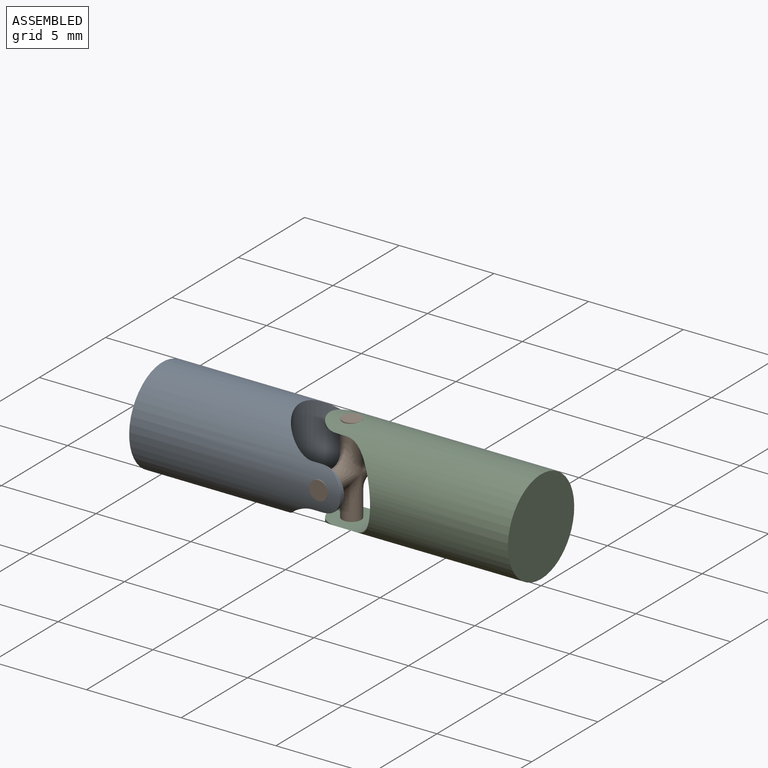
[diagram: assembled view]
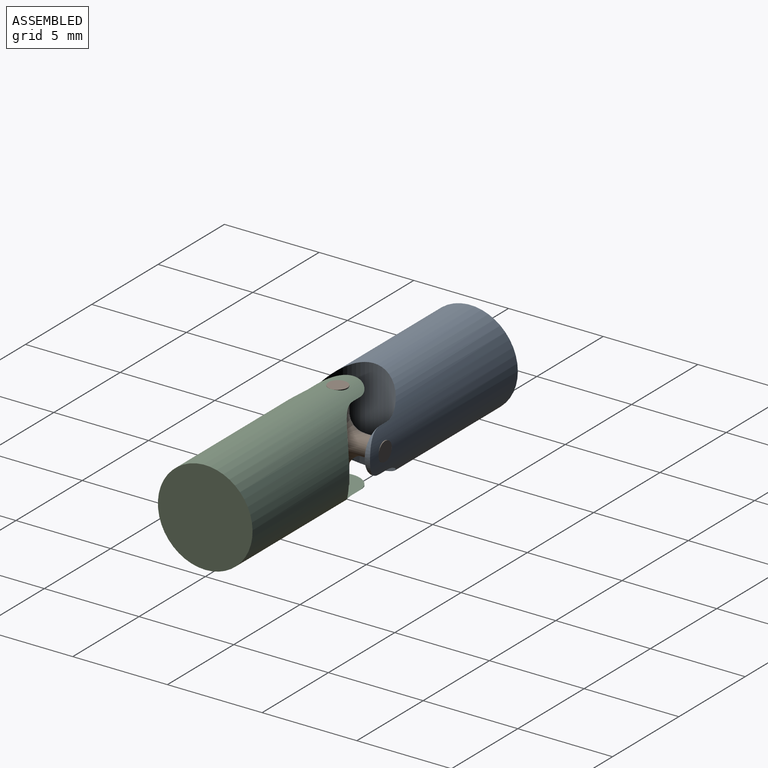
[diagram: assembled view, second angle]
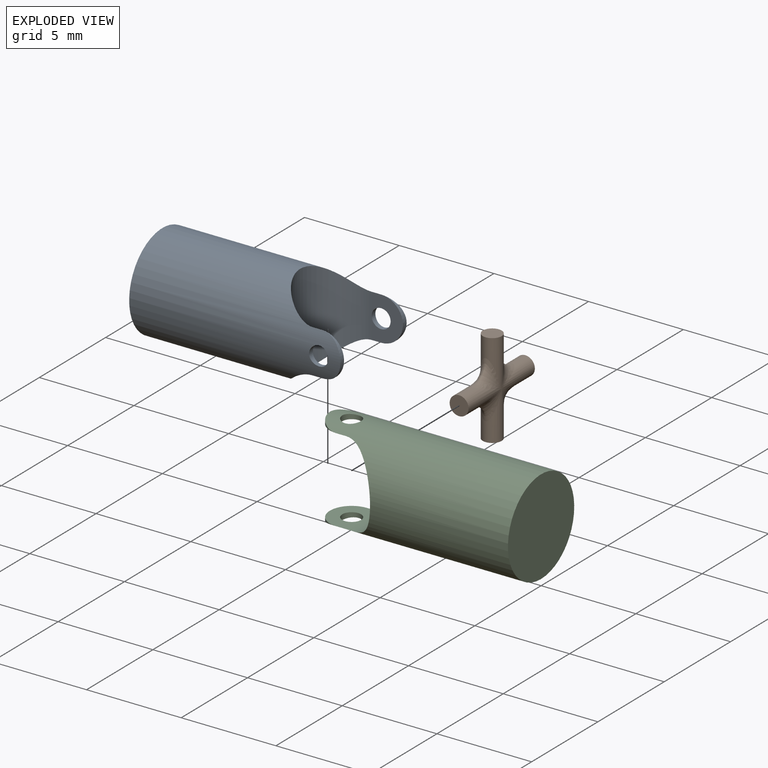
[diagram: exploded view]
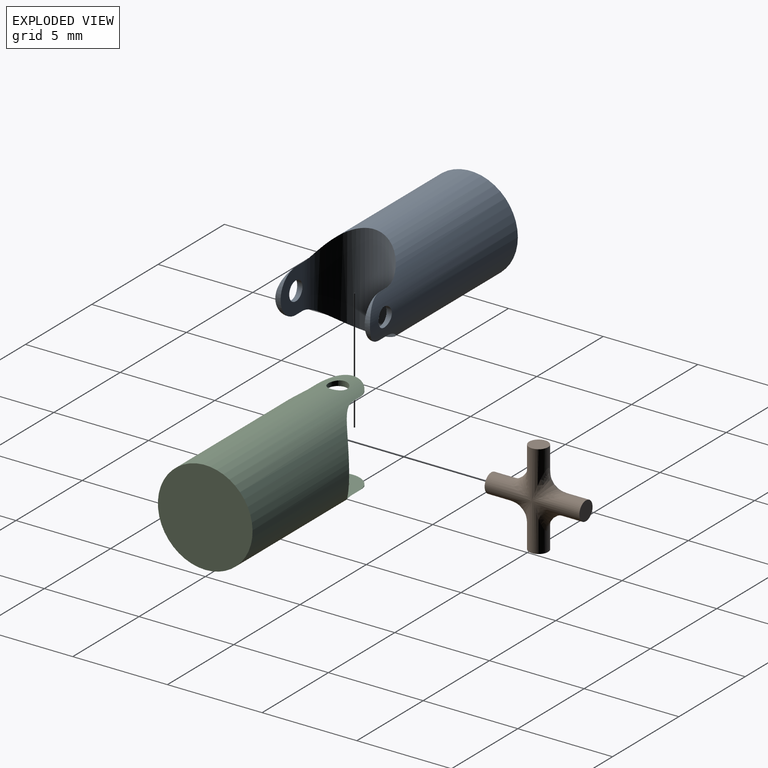
[diagram: exploded view, second angle]
ASSEMBLY  parts=3 mates=2
PART A: 9 faces, bbox 11.2x5x5 mm
  f0: cylinder r=2.5mm len=11.15mm, axis (1,0,0), area 136.5mm2, adj f1,f2,f3,f4,f5,f6,f7,f8
  f1: plane 2.3x1.65mm, normal (0,-1,0), area 2.4mm2, adj f0,f4,f6,f8
  f2: plane 2.3x1.65mm, normal (0,1,0), area 2.4mm2, adj f0,f4,f5,f7
  f3: plane 5x5mm, normal (-1,0,0), area 19.6mm2, adj f0
  f4: cylinder r=2.22mm len=5mm, axis (0,0,-1), area 26.3mm2, adj f0,f1,f2
  f5: cylinder r=1.15mm len=2.3mm, axis (0,-1,0), area 0.5mm2, adj f0,f2
  f6: cylinder r=1.15mm len=2.3mm, axis (0,-1,0), area 0.5mm2, adj f0,f1
  f7: cylinder r=0.5mm len=1mm, axis (0,1,0), area 0.8mm2, adj f0,f2
  f8: cylinder r=0.5mm len=1mm, axis (0,1,0), area 0.8mm2, adj f0,f1
PART B: 12 faces, bbox 1x5x5 mm
  f0: cylinder r=0.5mm len=2.5mm, axis (0,0,-1), area 4.9mm2, adj f1,f9,f10
  f1: plane 1x1mm, normal (0,0,1), area 0.8mm2, adj f0
  f2: plane 1x1mm, normal (0,1,0), area 0.8mm2, adj f3
  f3: cylinder r=0.5mm len=2.5mm, axis (0,1,0), area 4.9mm2, adj f2,f9,f11
  f4: plane 1x1mm, normal (0,0,-1), area 0.8mm2, adj f5
  f5: cylinder r=0.5mm len=2.5mm, axis (0,0,-1), area 4.9mm2, adj f4,f8,f11
  f6: cylinder r=0.5mm len=2.5mm, axis (0,1,0), area 4.9mm2, adj f7,f8,f10
  f7: plane 1x1mm, normal (0,-1,0), area 0.8mm2, adj f6
  f8: bspline ~1.5x1.5mm, area 2mm2, adj f5,f6
  f9: bspline ~1.5x1.5mm, area 2mm2, adj f0,f3
  f10: bspline ~1.5x1.5mm, area 2mm2, adj f0,f6
  f11: bspline ~1.5x1.5mm, area 2mm2, adj f3,f5
PART C: 9 faces, bbox 11.2x5x5 mm
  f0: cylinder r=2.5mm len=11.15mm, axis (-1,0,0), area 136.5mm2, adj f1,f2,f3,f4,f5,f6,f7,f8
  f1: plane 2.3x1.65mm, normal (0,0,1), area 2.4mm2, adj f0,f4,f6,f8
  f2: plane 2.3x1.65mm, normal (0,0,-1), area 2.4mm2, adj f0,f4,f5,f7
  f3: plane 5x5mm, normal (1,0,0), area 19.6mm2, adj f0
  f4: cylinder r=2.22mm len=5mm, axis (0,1,0), area 26.3mm2, adj f0,f1,f2
  f5: cylinder r=1.15mm len=2.3mm, axis (0,0,1), area 0.5mm2, adj f0,f2
  f6: cylinder r=1.15mm len=2.3mm, axis (0,0,1), area 0.5mm2, adj f0,f1
  f7: cylinder r=0.5mm len=1mm, axis (0,0,-1), area 0.8mm2, adj f0,f2
  f8: cylinder r=0.5mm len=1mm, axis (0,0,-1), area 0.8mm2, adj f0,f1
PLACE A at identity
PLACE B at identity
PLACE C at identity
MATE revolute B.f3 <-> A.f7  axis (0,-1,0) through (0,-2.5,0)mm
MATE revolute B.f0 <-> C.f7  axis (0,0,1) through (0,0,2.5)mm
